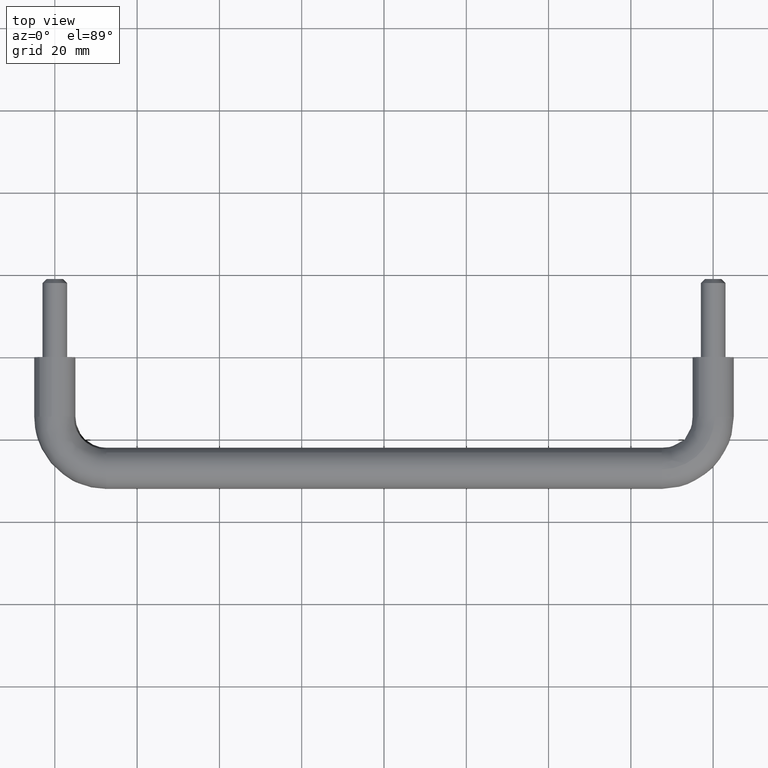
[diagram: clean part render]
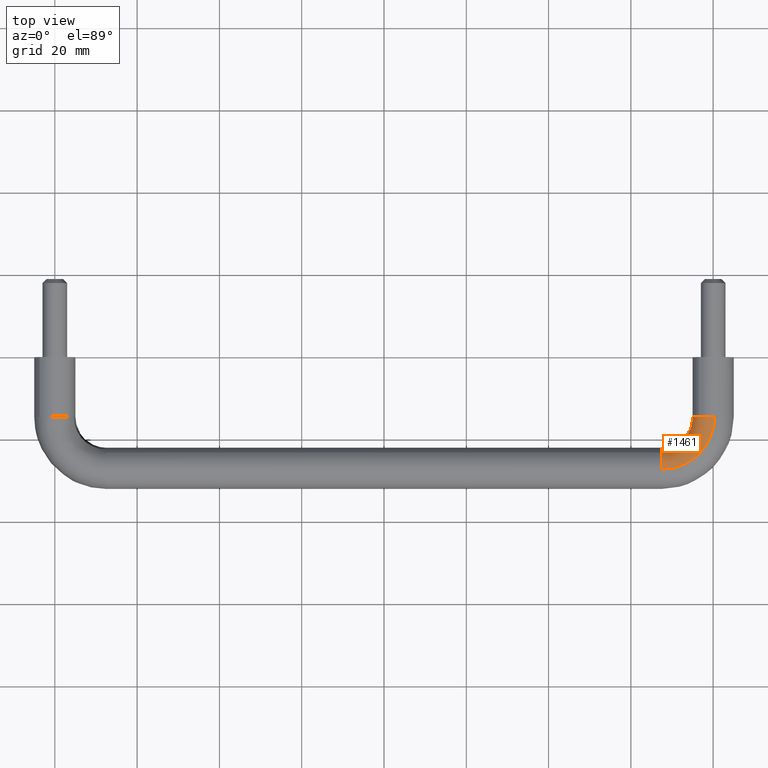
[diagram: same view with one face highlighted and labeled with its STEP entity id]
A machine part, top view. The second image highlights one B-rep face of the part: STEP entity #1461.
In plain terms, the highlighted face is a freeform B-spline surface patch.
Its self-contained STEP definition (entity closure, byte-faithful):
#732=CARTESIAN_POINT('',(159.937169799699600,-14.500000000789459,-4.999605221007975));
#733=VERTEX_POINT('',#732);
#749=CARTESIAN_POINT('',(155.0,-14.500000000000000,0.0));
#750=VERTEX_POINT('',#749);
#751=CARTESIAN_POINT('',(159.937169799699690,-14.500000000789459,-4.999605221007975));
#752=CARTESIAN_POINT('',(155.000000000000030,-14.500000000000004,-4.937559647791153));
#753=CARTESIAN_POINT('',(155.0,-14.500000000000000,0.0));
#761=(BOUNDED_CURVE()B_SPLINE_CURVE(2,(#751,#752,#753),.UNSPECIFIED.,.F.,.U.)B_SPLINE_CURVE_WITH_KNOTS((3,3),(0.252215704140436,0.500000000000000),.UNSPECIFIED.)CURVE()GEOMETRIC_REPRESENTATION_ITEM()RATIONAL_B_SPLINE_CURVE((0.994854295500935,0.709702640057070,1.0))REPRESENTATION_ITEM(''));
#762=EDGE_CURVE('',#733,#750,#761,.T.);
#764=CARTESIAN_POINT('',(156.495454233629910,-14.500000000000000,3.566252791294635));
#765=VERTEX_POINT('',#764);
#766=CARTESIAN_POINT('',(155.0,-14.500000000000000,0.0));
#767=CARTESIAN_POINT('',(155.000000000000060,-14.500000000000002,2.096674923959875));
#768=CARTESIAN_POINT('',(156.495454233629940,-14.500000000000000,3.566252791294634));
#776=(BOUNDED_CURVE()B_SPLINE_CURVE(2,(#766,#767,#768),.UNSPECIFIED.,.F.,.U.)B_SPLINE_CURVE_WITH_KNOTS((3,3),(0.500000000000000,0.626316804567075),.UNSPECIFIED.)CURVE()GEOMETRIC_REPRESENTATION_ITEM()RATIONAL_B_SPLINE_CURVE((1.0,0.852010658080478,0.853569642411023))REPRESENTATION_ITEM(''));
#777=EDGE_CURVE('',#750,#765,#776,.T.);
#895=CARTESIAN_POINT('',(160.348666263995000,-14.500000001517460,4.987828368774506));
#896=VERTEX_POINT('',#895);
#897=CARTESIAN_POINT('',(156.495454233629940,-14.500000000000000,3.566252791294634));
#898=CARTESIAN_POINT('',(157.954446901437000,-14.500000000000000,5.0));
#899=CARTESIAN_POINT('',(160.0,-14.500000000000000,5.0));
#900=CARTESIAN_POINT('',(160.174545585513780,-14.500000000000002,5.0));
#901=CARTESIAN_POINT('',(160.348666263994970,-14.500000001517460,4.987828368774506));
#909=(BOUNDED_CURVE()B_SPLINE_CURVE(2,(#897,#898,#899,#900,#901),.UNSPECIFIED.,.F.,.U.)B_SPLINE_CURVE_WITH_KNOTS((3,2,3),(0.626316804567074,0.750000000000000,0.762166313886754),.UNSPECIFIED.)CURVE()GEOMETRIC_REPRESENTATION_ITEM()RATIONAL_B_SPLINE_CURVE((0.853569642411023,0.855096123106068,1.0,0.985746276658456,0.972879875494737))REPRESENTATION_ITEM(''));
#910=EDGE_CURVE('',#765,#896,#909,.T.);
#954=CARTESIAN_POINT('',(147.500000000000000,-23.182221785298410,3.228710191911005));
#955=VERTEX_POINT('',#954);
#956=CARTESIAN_POINT('',(147.500000002716090,-27.348666267987259,4.987828368495434));
#957=VERTEX_POINT('',#956);
#958=CARTESIAN_POINT('',(147.500000000000030,-23.182221785298410,3.228710191911005));
#959=CARTESIAN_POINT('',(147.500000000000030,-24.680208607630032,5.0));
#960=CARTESIAN_POINT('',(147.500000000000000,-27.0,5.0));
#961=CARTESIAN_POINT('',(147.500000000000060,-27.174545589520640,5.0));
#962=CARTESIAN_POINT('',(147.500000002716060,-27.348666267987262,4.987828368495434));
#970=(BOUNDED_CURVE()B_SPLINE_CURVE(2,(#958,#959,#960,#961,#962),.UNSPECIFIED.,.F.,.U.)B_SPLINE_CURVE_WITH_KNOTS((3,2,3),(0.612408089723808,0.750000000000000,0.762166314162064),.UNSPECIFIED.)CURVE()GEOMETRIC_REPRESENTATION_ITEM()RATIONAL_B_SPLINE_CURVE((0.855039471779534,0.838801050066057,1.0,0.985746276335909,0.972879874912431))REPRESENTATION_ITEM(''));
#971=EDGE_CURVE('',#955,#957,#970,.T.);
#1068=CARTESIAN_POINT('',(147.500000000000000,-22.0,0.0));
#1069=VERTEX_POINT('',#1068);
#1070=CARTESIAN_POINT('',(147.500000000000000,-22.0,0.0));
#1071=CARTESIAN_POINT('',(147.499999999999970,-22.000000000000004,1.830795759032039));
#1072=CARTESIAN_POINT('',(147.500000000000030,-23.182221785298410,3.228710191911005));
#1080=(BOUNDED_CURVE()B_SPLINE_CURVE(2,(#1070,#1071,#1072),.UNSPECIFIED.,.F.,.U.)B_SPLINE_CURVE_WITH_KNOTS((3,3),(0.500000000000000,0.612408089723808),.UNSPECIFIED.)CURVE()GEOMETRIC_REPRESENTATION_ITEM()RATIONAL_B_SPLINE_CURVE((1.0,0.868305731120490,0.855039471779534))REPRESENTATION_ITEM(''));
#1081=EDGE_CURVE('',#1069,#955,#1080,.T.);
#1083=CARTESIAN_POINT('',(147.500000001367910,-26.937169798597431,-4.999605220994124));
#1084=VERTEX_POINT('',#1083);
#1085=CARTESIAN_POINT('',(147.500000001367990,-26.937169798597427,-4.999605220994124));
#1086=CARTESIAN_POINT('',(147.500000000000060,-22.000000000000004,-4.937559645613947));
#1087=CARTESIAN_POINT('',(147.500000000000000,-22.0,0.0));
#1095=(BOUNDED_CURVE()B_SPLINE_CURVE(2,(#1085,#1086,#1087),.UNSPECIFIED.,.F.,.U.)B_SPLINE_CURVE_WITH_KNOTS((3,3),(0.252215704217978,0.500000000000000),.UNSPECIFIED.)CURVE()GEOMETRIC_REPRESENTATION_ITEM()RATIONAL_B_SPLINE_CURVE((0.994854295322464,0.709702640147916,1.0))REPRESENTATION_ITEM(''));
#1096=EDGE_CURVE('',#1084,#1069,#1095,.T.);
#1398=CARTESIAN_POINT('',(146.606541061896170,-27.317564068823447,4.987828388444838));
#1399=CARTESIAN_POINT('',(161.344915040638480,-28.344914655387324,4.987828388444835));
#1400=CARTESIAN_POINT('',(160.317564043961820,-13.606540705232140,4.987828388444838));
#1401=CARTESIAN_POINT('',(146.616467438591710,-27.175160244941829,4.997807049440652));
#1402=CARTESIAN_POINT('',(161.191097292389490,-28.191096911418512,4.997807049440650));
#1403=CARTESIAN_POINT('',(160.175160220356470,-13.616467085890307,4.997807049440652));
#1404=CARTESIAN_POINT('',(146.626417252596550,-27.032420189365538,4.999605221019078));
#1405=CARTESIAN_POINT('',(161.036916362866750,-28.036915986185953,4.999605221019080));
#1406=CARTESIAN_POINT('',(160.032420165057030,-13.626416903867069,4.999605221019078));
#1407=CARTESIAN_POINT('',(146.974075287894410,-22.044917181192606,5.062435420435842));
#1408=CARTESIAN_POINT('',(155.649655956574750,-22.649655729800891,5.062435420435842));
#1409=CARTESIAN_POINT('',(155.044917166558150,-13.974075077948177,5.062435420435843));
#1410=CARTESIAN_POINT('',(146.978444317591960,-21.982239070673444,0.062830199416764));
#1411=CARTESIAN_POINT('',(155.581954081991880,-22.581953857101901,0.062830199416764));
#1412=CARTESIAN_POINT('',(154.982239056160470,-13.978444109389811,0.062830199416764));
#1413=CARTESIAN_POINT('',(146.982813347289520,-21.919560960154268,-4.936775021602313));
#1414=CARTESIAN_POINT('',(155.514252207408960,-22.514251984402893,-4.936775021602313));
#1415=CARTESIAN_POINT('',(154.919560945763010,-13.982813140831443,-4.936775021602315));
#1416=CARTESIAN_POINT('',(146.635155311991610,-26.907063968327208,-4.999605221019078));
#1417=CARTESIAN_POINT('',(160.901512613700960,-27.901512240787969,-4.999605221019080));
#1418=CARTESIAN_POINT('',(159.907063944261840,-13.635154966750337,-4.999605221019078));
#1426=(BOUNDED_SURFACE()B_SPLINE_SURFACE(2,2,((#1398,#1401,#1404,#1407,#1410,#1413,#1416),(#1399,#1402,#1405,#1408,#1411,#1414,#1417),(#1400,#1403,#1406,#1409,#1412,#1415,#1418)),.UNSPECIFIED.,.F.,.F.,.U.)B_SPLINE_SURFACE_WITH_KNOTS((3,3),(3,2,2,3),(0.0,23.415073753643181),(0.0,0.331370533878608,8.615641781340530,16.899913028802452),.UNSPECIFIED.)GEOMETRIC_REPRESENTATION_ITEM()RATIONAL_B_SPLINE_SURFACE(((0.895729732449210,0.905606490046838,0.916342095240933,0.647951709431553,0.916342095240933,0.647951709431553,0.916342095240933),(0.587800221482116,0.594281596491894,0.601326568744382,0.425202094466791,0.601326568744382,0.425202094466791,0.601326568744382),(0.895729743804760,0.905606501527600,0.916342106857795,0.647951717645915,0.916342106857795,0.647951717645915,0.916342106857795)))REPRESENTATION_ITEM('')SURFACE());
#1427=ORIENTED_EDGE('',*,*,#910,.F.);
#1428=ORIENTED_EDGE('',*,*,#777,.F.);
#1429=ORIENTED_EDGE('',*,*,#762,.F.);
#1430=CARTESIAN_POINT('',(147.500000001367940,-26.937169798597434,-4.999605220994125));
#1431=CARTESIAN_POINT('',(159.937169799004380,-26.937169797847403,-4.999605221019079));
#1432=CARTESIAN_POINT('',(159.937169799699600,-14.500000000789456,-4.999605221007975));
#1440=(BOUNDED_CURVE()B_SPLINE_CURVE(2,(#1430,#1431,#1432),.UNSPECIFIED.,.F.,.U.)B_SPLINE_CURVE_WITH_KNOTS((3,3),(-1.734750791429830,-0.265249208473514),.UNSPECIFIED.)CURVE()GEOMETRIC_REPRESENTATION_ITEM()RATIONAL_B_SPLINE_CURVE((0.889029723495438,0.628638946281181,0.889029723529692))REPRESENTATION_ITEM(''));
#1441=EDGE_CURVE('',#1084,#733,#1440,.T.);
#1442=ORIENTED_EDGE('',*,*,#1441,.F.);
#1443=ORIENTED_EDGE('',*,*,#1096,.T.);
#1444=ORIENTED_EDGE('',*,*,#1081,.T.);
#1445=ORIENTED_EDGE('',*,*,#971,.T.);
#1446=CARTESIAN_POINT('',(147.500000002716120,-27.348666267987259,4.987828368495434));
#1447=CARTESIAN_POINT('',(160.348666254842270,-27.348666252445017,4.987828369202161));
#1448=CARTESIAN_POINT('',(160.348666263995030,-14.500000001517463,4.987828368774506));
#1456=(BOUNDED_CURVE()B_SPLINE_CURVE(2,(#1446,#1447,#1448),.UNSPECIFIED.,.F.,.U.)B_SPLINE_CURVE_WITH_KNOTS((3,3),(-1.734750791219091,-0.265249208587038),.UNSPECIFIED.)CURVE()GEOMETRIC_REPRESENTATION_ITEM()RATIONAL_B_SPLINE_CURVE((0.869031711723073,0.614498216651757,0.869031711790234))REPRESENTATION_ITEM(''));
#1457=EDGE_CURVE('',#957,#896,#1456,.T.);
#1458=ORIENTED_EDGE('',*,*,#1457,.T.);
#1459=EDGE_LOOP('',(#1427,#1428,#1429,#1442,#1443,#1444,#1445,#1458));
#1460=FACE_OUTER_BOUND('',#1459,.T.);
#1461=ADVANCED_FACE('',(#1460),#1426,.T.);